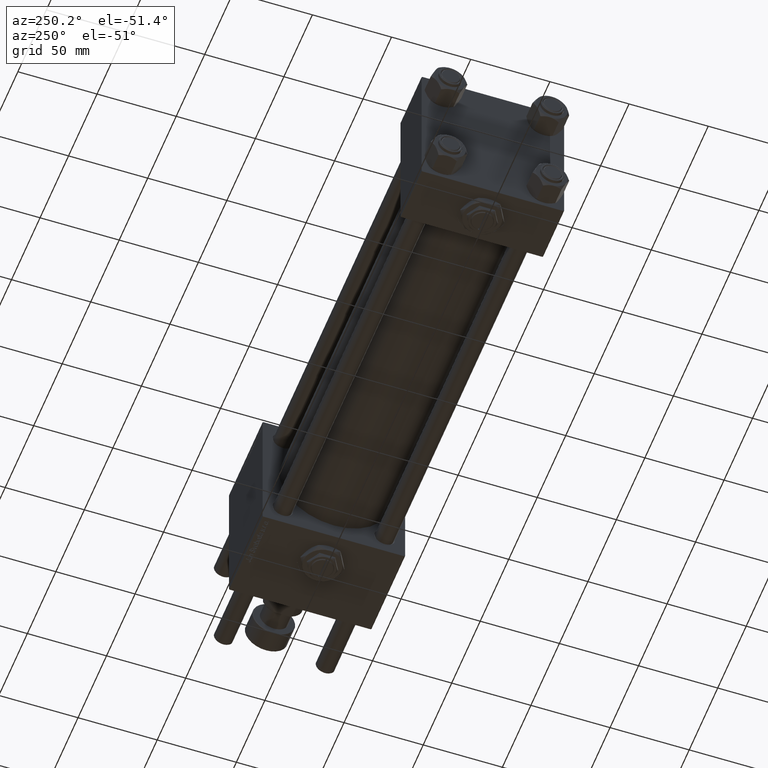
[diagram: clean part render]
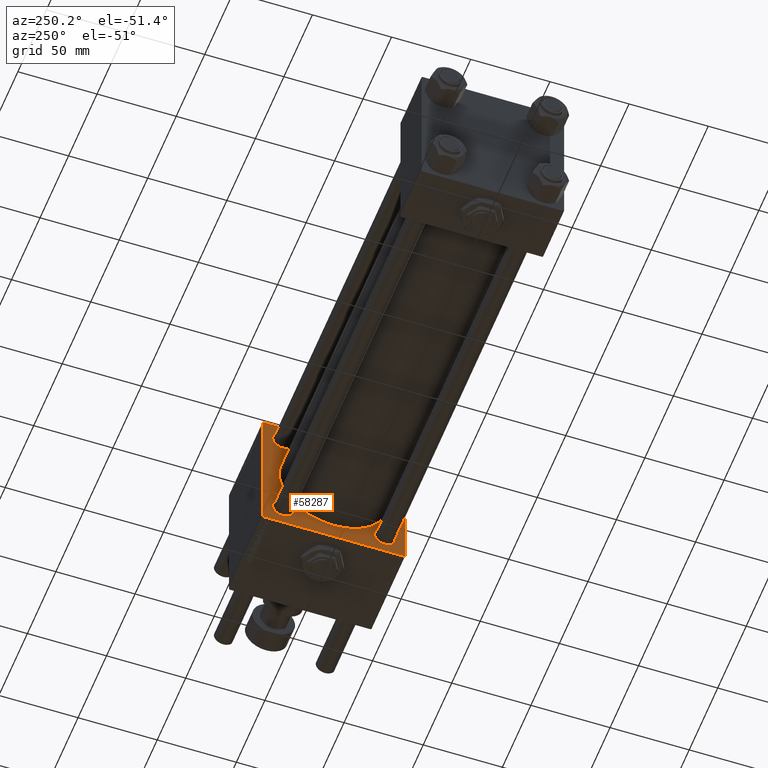
[diagram: same view with one face highlighted and labeled with its STEP entity id]
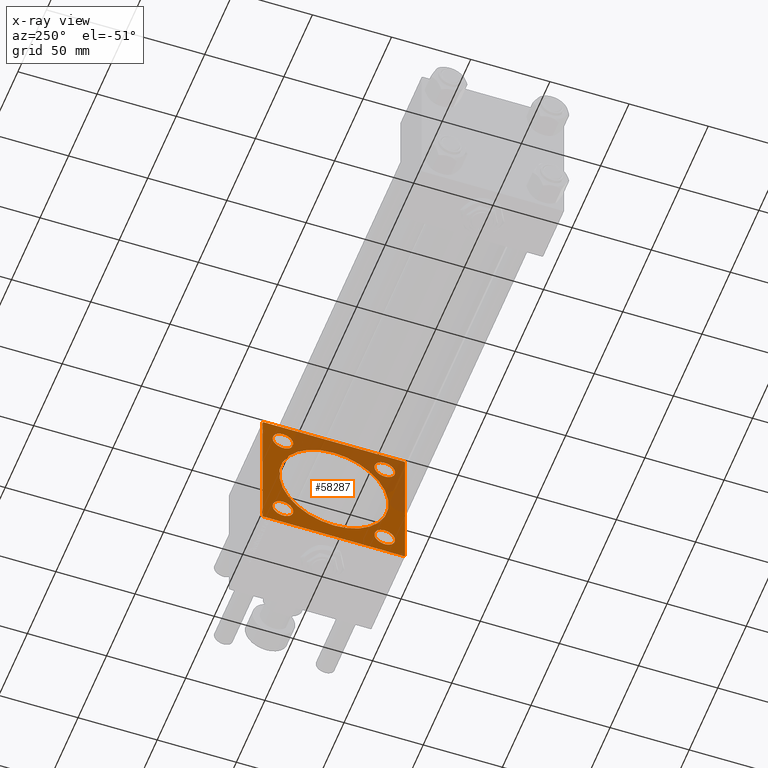
[diagram: x-ray of the same camera — body ghosted, the highlighted face saturated]
A machine part, auxiliary view. The second image highlights one B-rep face of the part: STEP entity #58287.
The next image is the same camera in x-ray: the body ghosted, the highlighted face saturated — about 33% of this face is hidden behind the body in this view.
In plain terms, the highlighted planar face has unit normal (-1, 0, 0).
Its self-contained STEP definition (entity closure, byte-faithful):
#403 = AXIS2_PLACEMENT_3D ( 'NONE', #58868, #423, #54067 ) ;
#423 = DIRECTION ( 'NONE',  ( 1.000000000000000000, 0.000000000000000000, 0.000000000000000000 ) ) ;
#1593 = CARTESIAN_POINT ( 'NONE',  ( 278.9999999999999432, -32.14999999999997726, 32.15000000000001279 ) ) ;
#2060 = LINE ( 'NONE', #56897, #56473 ) ;
#2491 = DIRECTION ( 'NONE',  ( -0.000000000000000000, 0.7071067811865081598, 0.7071067811865868746 ) ) ;
#2664 = AXIS2_PLACEMENT_3D ( 'NONE', #1593, #38128, #25245 ) ;
#2894 = DIRECTION ( 'NONE',  ( 0.000000000000000000, 0.000000000000000000, 1.000000000000000000 ) ) ;
#3628 = ORIENTED_EDGE ( 'NONE', *, *, #11565, .T. ) ;
#4061 = VERTEX_POINT ( 'NONE', #19139 ) ;
#4255 = EDGE_CURVE ( 'NONE', #22335, #24442, #14465, .T. ) ;
#4890 = ORIENTED_EDGE ( 'NONE', *, *, #22136, .T. ) ;
#5125 = EDGE_CURVE ( 'NONE', #46800, #36462, #19293, .T. ) ;
#5391 = ORIENTED_EDGE ( 'NONE', *, *, #4255, .T. ) ;
#6375 = CARTESIAN_POINT ( 'NONE',  ( 278.9999999999999432, 1.622946243093158675E-15, -34.50000000000000000 ) ) ;
#7131 = DIRECTION ( 'NONE',  ( 0.000000000000000000, 7.709882115452478166E-17, -1.000000000000000000 ) ) ;
#7326 = ORIENTED_EDGE ( 'NONE', *, *, #34595, .T. ) ;
#7543 = DIRECTION ( 'NONE',  ( -0.000000000000000000, -0.7071067811865474617, -0.7071067811865474617 ) ) ;
#7685 = DIRECTION ( 'NONE',  ( 1.000000000000000000, 0.000000000000000000, 0.000000000000000000 ) ) ;
#8137 = EDGE_LOOP ( 'NONE', ( #53522, #55926 ) ) ;
#8519 = CARTESIAN_POINT ( 'NONE',  ( 278.9999999999999432, -44.74999999999968736, -44.75000000000031264 ) ) ;
#9100 = EDGE_CURVE ( 'NONE', #22936, #48562, #53893, .T. ) ;
#9682 = EDGE_LOOP ( 'NONE', ( #34138, #49763 ) ) ;
#10179 = LINE ( 'NONE', #51530, #29216 ) ;
#10326 = VERTEX_POINT ( 'NONE', #35287 ) ;
#10387 = CARTESIAN_POINT ( 'NONE',  ( 278.9999999999999432, 45.00000000000001421, 44.49999999999994316 ) ) ;
#10535 = CARTESIAN_POINT ( 'NONE',  ( 278.9999999999999432, -2.602085213965210642E-15, 0.000000000000000000 ) ) ;
#10590 = DIRECTION ( 'NONE',  ( 1.000000000000000000, 0.000000000000000000, 0.000000000000000000 ) ) ;
#11000 = DIRECTION ( 'NONE',  ( 0.000000000000000000, -1.000000000000000000, 0.000000000000000000 ) ) ;
#11011 = CARTESIAN_POINT ( 'NONE',  ( 278.9999999999999432, -32.14999999999997726, -32.15000000000001279 ) ) ;
#11215 = CARTESIAN_POINT ( 'NONE',  ( 278.9999999999999432, 45.00000000000001421, -44.49999999999997158 ) ) ;
#11456 = DIRECTION ( 'NONE',  ( 0.000000000000000000, 0.000000000000000000, 1.000000000000000000 ) ) ;
#11483 = CARTESIAN_POINT ( 'NONE',  ( 278.9999999999999432, -44.75000000000249401, 44.74999999999752021 ) ) ;
#11565 = EDGE_CURVE ( 'NONE', #40776, #35529, #47993, .T. ) ;
#11867 = EDGE_CURVE ( 'NONE', #49670, #4061, #29941, .T. ) ;
#12035 = CARTESIAN_POINT ( 'NONE',  ( 278.9999999999999432, 44.75000000000000000, -44.75000000000000000 ) ) ;
#12450 = CARTESIAN_POINT ( 'NONE',  ( 278.9999999999999432, -32.14999999999997726, -38.65000000000004832 ) ) ;
#12998 = LINE ( 'NONE', #8519, #56835 ) ;
#13016 = CARTESIAN_POINT ( 'NONE',  ( 278.9999999999999432, 32.14999999999999147, 25.64999999999997016 ) ) ;
#13288 = DIRECTION ( 'NONE',  ( 0.000000000000000000, -0.7071067811865525687, 0.7071067811865425767 ) ) ;
#13344 = AXIS2_PLACEMENT_3D ( 'NONE', #17454, #49529, #26443 ) ;
#13814 = CARTESIAN_POINT ( 'NONE',  ( 278.9999999999999432, -44.49999999999995737, -45.00000000000000000 ) ) ;
#13924 = VERTEX_POINT ( 'NONE', #54077 ) ;
#14059 = CARTESIAN_POINT ( 'NONE',  ( 278.9999999999999432, 32.14999999999999147, 38.65000000000004121 ) ) ;
#14125 = ORIENTED_EDGE ( 'NONE', *, *, #11867, .F. ) ;
#14141 = ORIENTED_EDGE ( 'NONE', *, *, #15928, .T. ) ;
#14465 = CIRCLE ( 'NONE', #46982, 6.500000000000033751 ) ;
#14658 = DIRECTION ( 'NONE',  ( 0.000000000000000000, 0.7071067811865474617, -0.7071067811865474617 ) ) ;
#15045 = EDGE_LOOP ( 'NONE', ( #5391, #4890 ) ) ;
#15481 = DIRECTION ( 'NONE',  ( 1.000000000000000000, 0.000000000000000000, 0.000000000000000000 ) ) ;
#15928 = EDGE_CURVE ( 'NONE', #13924, #48373, #46185, .T. ) ;
#16248 = DIRECTION ( 'NONE',  ( 0.000000000000000000, 0.000000000000000000, 1.000000000000000000 ) ) ;
#16487 = VECTOR ( 'NONE', #44006, 1000.000000000000000 ) ;
#16581 = AXIS2_PLACEMENT_3D ( 'NONE', #10535, #23382, #18886 ) ;
#17334 = EDGE_CURVE ( 'NONE', #28696, #23680, #12998, .T. ) ;
#17454 = CARTESIAN_POINT ( 'NONE',  ( 278.9999999999999432, 32.14999999999999147, -32.15000000000000568 ) ) ;
#18886 = DIRECTION ( 'NONE',  ( 0.000000000000000000, 0.000000000000000000, -1.000000000000000000 ) ) ;
#19139 = CARTESIAN_POINT ( 'NONE',  ( 278.9999999999999432, -44.50000000000002842, 44.99999999999998579 ) ) ;
#19293 = CIRCLE ( 'NONE', #23099, 6.500000000000033751 ) ;
#19623 = EDGE_LOOP ( 'NONE', ( #32502, #46892, #52606, #36455, #14125, #38840, #58662, #3628 ) ) ;
#19810 = VERTEX_POINT ( 'NONE', #12450 ) ;
#20702 = AXIS2_PLACEMENT_3D ( 'NONE', #11011, #15481, #28656 ) ;
#22136 = EDGE_CURVE ( 'NONE', #24442, #22335, #37812, .T. ) ;
#22335 = VERTEX_POINT ( 'NONE', #14059 ) ;
#22521 = EDGE_CURVE ( 'NONE', #49670, #54042, #10179, .T. ) ;
#22679 = VERTEX_POINT ( 'NONE', #27181 ) ;
#22936 = VERTEX_POINT ( 'NONE', #6375 ) ;
#23099 = AXIS2_PLACEMENT_3D ( 'NONE', #38433, #10590, #16248 ) ;
#23275 = DIRECTION ( 'NONE',  ( 1.000000000000000000, 0.000000000000000000, 0.000000000000000000 ) ) ;
#23382 = DIRECTION ( 'NONE',  ( 1.000000000000000000, 0.000000000000000000, 0.000000000000000000 ) ) ;
#23589 = FACE_BOUND ( 'NONE', #8137, .T. ) ;
#23680 = VERTEX_POINT ( 'NONE', #29502 ) ;
#23860 = EDGE_CURVE ( 'NONE', #48562, #22936, #29134, .T. ) ;
#24442 = VERTEX_POINT ( 'NONE', #13016 ) ;
#25245 = DIRECTION ( 'NONE',  ( 0.000000000000000000, 0.000000000000000000, 1.000000000000000000 ) ) ;
#25322 = CARTESIAN_POINT ( 'NONE',  ( 278.9999999999999432, -2.602085213965210642E-15, 34.50000000000000000 ) ) ;
#26443 = DIRECTION ( 'NONE',  ( 0.000000000000000000, 0.000000000000000000, 1.000000000000000000 ) ) ;
#27181 = CARTESIAN_POINT ( 'NONE',  ( 278.9999999999999432, -32.14999999999997726, -25.64999999999997726 ) ) ;
#27489 = CIRCLE ( 'NONE', #41859, 6.500000000000033751 ) ;
#27804 = FACE_BOUND ( 'NONE', #35526, .T. ) ;
#28396 = FACE_BOUND ( 'NONE', #9682, .T. ) ;
#28656 = DIRECTION ( 'NONE',  ( 0.000000000000000000, 0.000000000000000000, 1.000000000000000000 ) ) ;
#28696 = VERTEX_POINT ( 'NONE', #13814 ) ;
#28747 = AXIS2_PLACEMENT_3D ( 'NONE', #37385, #46083, #41583 ) ;
#29134 = CIRCLE ( 'NONE', #403, 34.50000000000000000 ) ;
#29216 = VECTOR ( 'NONE', #14658, 1000.000000000000114 ) ;
#29412 = DIRECTION ( 'NONE',  ( 1.000000000000000000, 0.000000000000000000, 0.000000000000000000 ) ) ;
#29502 = CARTESIAN_POINT ( 'NONE',  ( 278.9999999999999432, -44.99999999999999289, -44.49999999999997158 ) ) ;
#29603 = DIRECTION ( 'NONE',  ( 0.000000000000000000, 0.000000000000000000, -1.000000000000000000 ) ) ;
#29941 = LINE ( 'NONE', #44293, #16487 ) ;
#30200 = DIRECTION ( 'NONE',  ( 1.000000000000000000, 0.000000000000000000, 0.000000000000000000 ) ) ;
#30992 = CARTESIAN_POINT ( 'NONE',  ( 278.9999999999999432, 32.14999999999999147, -38.65000000000004121 ) ) ;
#31094 = EDGE_CURVE ( 'NONE', #22679, #19810, #33126, .T. ) ;
#31639 = CARTESIAN_POINT ( 'NONE',  ( 278.9999999999999432, -32.14999999999997726, 38.65000000000004832 ) ) ;
#31977 = DIRECTION ( 'NONE',  ( 0.000000000000000000, 0.000000000000000000, 1.000000000000000000 ) ) ;
#32502 = ORIENTED_EDGE ( 'NONE', *, *, #54038, .T. ) ;
#33126 = CIRCLE ( 'NONE', #20702, 6.500000000000033751 ) ;
#33135 = CARTESIAN_POINT ( 'NONE',  ( 278.9999999999999432, 45.00000000000001421, -45.00000000000000000 ) ) ;
#34138 = ORIENTED_EDGE ( 'NONE', *, *, #23860, .T. ) ;
#34538 = CARTESIAN_POINT ( 'NONE',  ( 278.9999999999999432, 44.50000000000001421, -45.00000000000000000 ) ) ;
#34595 = EDGE_CURVE ( 'NONE', #48373, #13924, #50503, .T. ) ;
#34637 = EDGE_CURVE ( 'NONE', #10326, #4061, #38729, .T. ) ;
#35287 = CARTESIAN_POINT ( 'NONE',  ( 278.9999999999999432, -45.00000000000000000, 44.49999999999998579 ) ) ;
#35526 = EDGE_LOOP ( 'NONE', ( #44677, #55278 ) ) ;
#35529 = VERTEX_POINT ( 'NONE', #34538 ) ;
#36455 = ORIENTED_EDGE ( 'NONE', *, *, #34637, .T. ) ;
#36462 = VERTEX_POINT ( 'NONE', #52621 ) ;
#37385 = CARTESIAN_POINT ( 'NONE',  ( 278.9999999999999432, 0.000000000000000000, 0.000000000000000000 ) ) ;
#37812 = CIRCLE ( 'NONE', #55059, 6.500000000000033751 ) ;
#37986 = PLANE ( 'NONE',  #28747 ) ;
#38128 = DIRECTION ( 'NONE',  ( 1.000000000000000000, 0.000000000000000000, 0.000000000000000000 ) ) ;
#38433 = CARTESIAN_POINT ( 'NONE',  ( 278.9999999999999432, 32.14999999999999147, -32.15000000000000568 ) ) ;
#38729 = LINE ( 'NONE', #11483, #39967 ) ;
#38840 = ORIENTED_EDGE ( 'NONE', *, *, #22521, .T. ) ;
#39144 = VECTOR ( 'NONE', #11000, 1000.000000000000000 ) ;
#39454 = VECTOR ( 'NONE', #7543, 1000.000000000000114 ) ;
#39967 = VECTOR ( 'NONE', #2491, 1000.000000000000000 ) ;
#40776 = VERTEX_POINT ( 'NONE', #11215 ) ;
#41583 = DIRECTION ( 'NONE',  ( -0.000000000000000000, 0.000000000000000000, 1.000000000000000000 ) ) ;
#41859 = AXIS2_PLACEMENT_3D ( 'NONE', #48778, #30200, #49066 ) ;
#41877 = FACE_OUTER_BOUND ( 'NONE', #19623, .T. ) ;
#42482 = FACE_BOUND ( 'NONE', #43056, .T. ) ;
#43056 = EDGE_LOOP ( 'NONE', ( #7326, #14141 ) ) ;
#43376 = LINE ( 'NONE', #43953, #44060 ) ;
#43953 = CARTESIAN_POINT ( 'NONE',  ( 278.9999999999999432, -45.00000000000000000, 44.99999999999998579 ) ) ;
#44006 = DIRECTION ( 'NONE',  ( 0.000000000000000000, -1.000000000000000000, -1.541976423090495140E-16 ) ) ;
#44060 = VECTOR ( 'NONE', #7131, 1000.000000000000000 ) ;
#44130 = EDGE_CURVE ( 'NONE', #54042, #40776, #2060, .T. ) ;
#44293 = CARTESIAN_POINT ( 'NONE',  ( 278.9999999999999432, 45.00000000000001421, 45.00000000000000000 ) ) ;
#44677 = ORIENTED_EDGE ( 'NONE', *, *, #55243, .T. ) ;
#46053 = CARTESIAN_POINT ( 'NONE',  ( 278.9999999999999432, 32.14999999999999147, 32.15000000000000568 ) ) ;
#46083 = DIRECTION ( 'NONE',  ( -1.000000000000000000, 0.000000000000000000, -0.000000000000000000 ) ) ;
#46185 = CIRCLE ( 'NONE', #53863, 6.500000000000033751 ) ;
#46800 = VERTEX_POINT ( 'NONE', #30992 ) ;
#46892 = ORIENTED_EDGE ( 'NONE', *, *, #17334, .T. ) ;
#46979 = FACE_BOUND ( 'NONE', #15045, .T. ) ;
#46982 = AXIS2_PLACEMENT_3D ( 'NONE', #46053, #23275, #31977 ) ;
#47098 = CARTESIAN_POINT ( 'NONE',  ( 278.9999999999999432, 32.14999999999999147, 32.15000000000000568 ) ) ;
#47993 = LINE ( 'NONE', #12035, #39454 ) ;
#48335 = CARTESIAN_POINT ( 'NONE',  ( 278.9999999999999432, 44.49999999999995737, 45.00000000000000000 ) ) ;
#48373 = VERTEX_POINT ( 'NONE', #31639 ) ;
#48562 = VERTEX_POINT ( 'NONE', #25322 ) ;
#48778 = CARTESIAN_POINT ( 'NONE',  ( 278.9999999999999432, -32.14999999999997726, -32.15000000000001279 ) ) ;
#49066 = DIRECTION ( 'NONE',  ( 0.000000000000000000, 0.000000000000000000, 1.000000000000000000 ) ) ;
#49529 = DIRECTION ( 'NONE',  ( 1.000000000000000000, 0.000000000000000000, 0.000000000000000000 ) ) ;
#49670 = VERTEX_POINT ( 'NONE', #48335 ) ;
#49763 = ORIENTED_EDGE ( 'NONE', *, *, #9100, .T. ) ;
#50050 = EDGE_CURVE ( 'NONE', #19810, #22679, #27489, .T. ) ;
#50503 = CIRCLE ( 'NONE', #2664, 6.500000000000033751 ) ;
#51530 = CARTESIAN_POINT ( 'NONE',  ( 278.9999999999999432, 44.74999999999997158, 44.74999999999997158 ) ) ;
#51639 = CIRCLE ( 'NONE', #13344, 6.500000000000033751 ) ;
#52606 = ORIENTED_EDGE ( 'NONE', *, *, #57469, .F. ) ;
#52621 = CARTESIAN_POINT ( 'NONE',  ( 278.9999999999999432, 32.14999999999999147, -25.64999999999997016 ) ) ;
#53521 = CARTESIAN_POINT ( 'NONE',  ( 278.9999999999999432, -32.14999999999997726, 32.15000000000001279 ) ) ;
#53522 = ORIENTED_EDGE ( 'NONE', *, *, #31094, .T. ) ;
#53863 = AXIS2_PLACEMENT_3D ( 'NONE', #53521, #7685, #2894 ) ;
#53893 = CIRCLE ( 'NONE', #16581, 34.50000000000000000 ) ;
#54038 = EDGE_CURVE ( 'NONE', #35529, #28696, #56840, .T. ) ;
#54042 = VERTEX_POINT ( 'NONE', #10387 ) ;
#54067 = DIRECTION ( 'NONE',  ( 0.000000000000000000, 0.000000000000000000, -1.000000000000000000 ) ) ;
#54077 = CARTESIAN_POINT ( 'NONE',  ( 278.9999999999999432, -32.14999999999997726, 25.64999999999997726 ) ) ;
#55059 = AXIS2_PLACEMENT_3D ( 'NONE', #47098, #29412, #11456 ) ;
#55243 = EDGE_CURVE ( 'NONE', #36462, #46800, #51639, .T. ) ;
#55278 = ORIENTED_EDGE ( 'NONE', *, *, #5125, .T. ) ;
#55926 = ORIENTED_EDGE ( 'NONE', *, *, #50050, .T. ) ;
#56473 = VECTOR ( 'NONE', #29603, 1000.000000000000000 ) ;
#56835 = VECTOR ( 'NONE', #13288, 999.9999999999998863 ) ;
#56840 = LINE ( 'NONE', #33135, #39144 ) ;
#56897 = CARTESIAN_POINT ( 'NONE',  ( 278.9999999999999432, 45.00000000000001421, 45.00000000000000000 ) ) ;
#57469 = EDGE_CURVE ( 'NONE', #10326, #23680, #43376, .T. ) ;
#58287 = ADVANCED_FACE ( 'NONE', ( #42482, #46979, #27804, #23589, #28396, #41877 ), #37986, .T. ) ;
#58662 = ORIENTED_EDGE ( 'NONE', *, *, #44130, .T. ) ;
#58868 = CARTESIAN_POINT ( 'NONE',  ( 278.9999999999999432, -2.602085213965210642E-15, 0.000000000000000000 ) ) ;